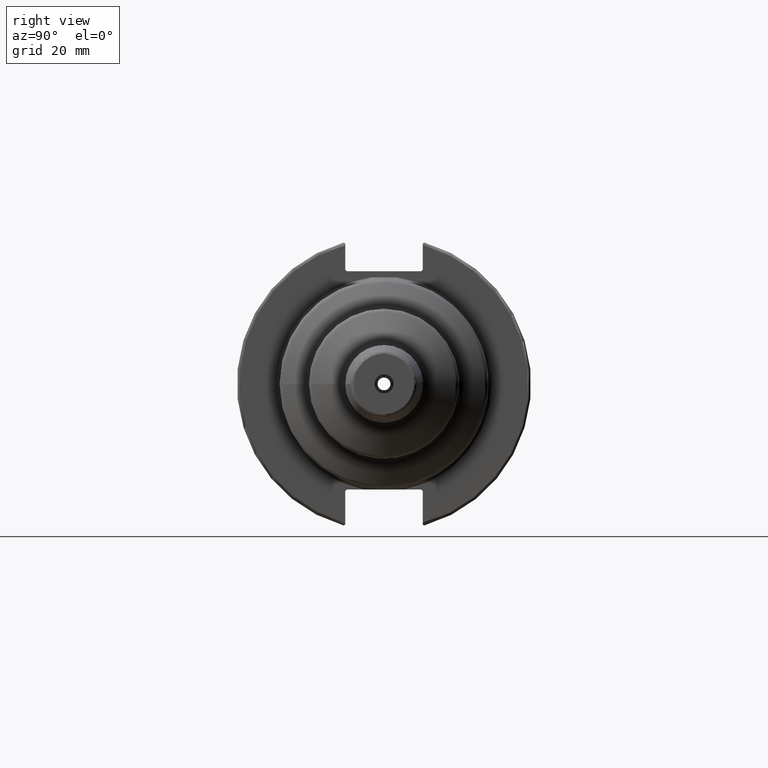
[diagram: clean part render]
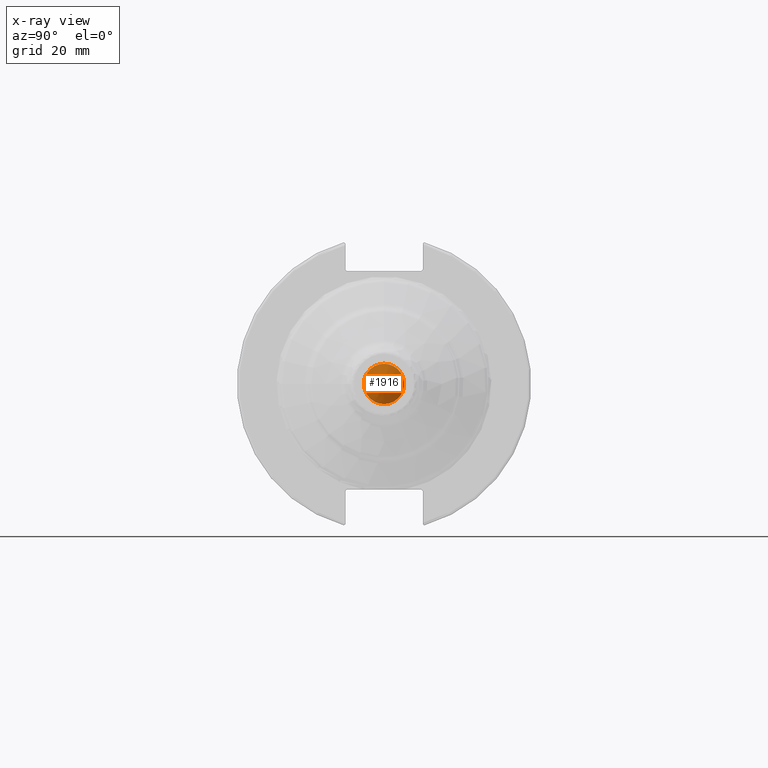
[diagram: x-ray — body ghosted, one internal face saturated and labeled with its STEP entity id]
A machine part, right view, then the same camera in x-ray: the body is ghosted and one INTERNAL B-rep face — a face not visible from any outside direction — is saturated and labeled: STEP entity #1916.
In plain terms, the highlighted conical surface has half-angle 59 deg.
Its self-contained STEP definition (entity closure, byte-faithful):
#150=CONICAL_SURFACE('',#2054,3.375,1.02974425867665);
#171=FACE_OUTER_BOUND('',#283,.T.);
#283=EDGE_LOOP('',(#1278,#1279,#1280,#1281,#1282));
#414=LINE('',#2930,#521);
#521=VECTOR('',#2318,3.375);
#628=CIRCLE('',#2052,2.15);
#629=CIRCLE('',#2053,2.15);
#630=CIRCLE('',#2055,6.75);
#767=VERTEX_POINT('',#2922);
#768=VERTEX_POINT('',#2924);
#769=VERTEX_POINT('',#2928);
#971=EDGE_CURVE('',#768,#767,#628,.T.);
#972=EDGE_CURVE('',#767,#768,#629,.T.);
#973=EDGE_CURVE('',#769,#769,#630,.T.);
#974=EDGE_CURVE('',#769,#768,#414,.T.);
#1278=ORIENTED_EDGE('',*,*,#973,.T.);
#1279=ORIENTED_EDGE('',*,*,#974,.T.);
#1280=ORIENTED_EDGE('',*,*,#971,.T.);
#1281=ORIENTED_EDGE('',*,*,#972,.T.);
#1282=ORIENTED_EDGE('',*,*,#974,.F.);
#1916=ADVANCED_FACE('',(#171),#150,.F.);
#2052=AXIS2_PLACEMENT_3D('',#2925,#2310,#2311);
#2053=AXIS2_PLACEMENT_3D('',#2926,#2312,#2313);
#2054=AXIS2_PLACEMENT_3D('',#2927,#2314,#2315);
#2055=AXIS2_PLACEMENT_3D('',#2929,#2316,#2317);
#2310=DIRECTION('center_axis',(1.,0.,0.));
#2311=DIRECTION('ref_axis',(0.,0.,-1.));
#2312=DIRECTION('center_axis',(1.,0.,0.));
#2313=DIRECTION('ref_axis',(0.,0.,-1.));
#2314=DIRECTION('center_axis',(-1.,0.,0.));
#2315=DIRECTION('ref_axis',(0.,0.,1.));
#2316=DIRECTION('center_axis',(-1.,0.,0.));
#2317=DIRECTION('ref_axis',(0.,0.,1.));
#2318=DIRECTION('',(0.515038074910054,1.04972719113862E-16,0.857167300702112));
#2922=CARTESIAN_POINT('',(53.1639588475268,-2.63299061816681E-16,2.15));
#2924=CARTESIAN_POINT('',(53.1639588475268,-2.6329906181668E-16,-2.15));
#2925=CARTESIAN_POINT('Origin',(53.1639588475268,0.,0.));
#2926=CARTESIAN_POINT('Origin',(53.1639588475268,0.,0.));
#2927=CARTESIAN_POINT('Origin',(52.427904589218,0.,0.));
#2928=CARTESIAN_POINT('',(50.4,-8.26636589424464E-16,-6.75));
#2929=CARTESIAN_POINT('Origin',(50.4,0.,0.));
#2930=CARTESIAN_POINT('',(52.427904589218,-4.13318294712232E-16,-3.375));